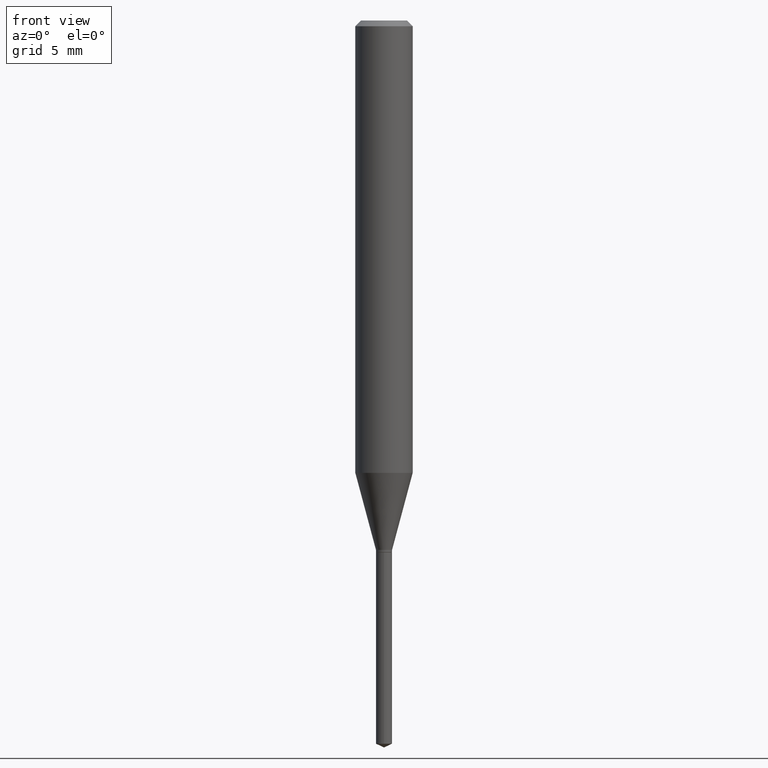
[diagram: clean part render]
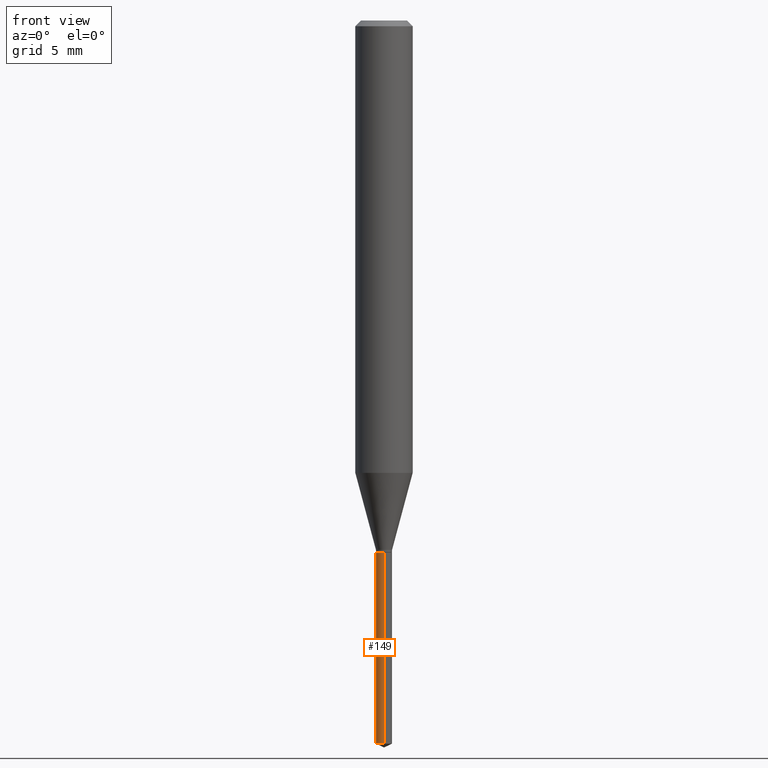
[diagram: same view with one face highlighted and labeled with its STEP entity id]
A machine part, front view. The second image highlights one B-rep face of the part: STEP entity #149.
In plain terms, the highlighted cylindrical surface (edge-blend (fillet) strip) has radius 0.4204 mm, axis along (-0, 0, 1).
Its self-contained STEP definition (entity closure, byte-faithful):
#7 = FACE_OUTER_BOUND ( 'NONE', #132, .T. ) ;
#8 = ORIENTED_EDGE ( 'NONE', *, *, #353, .F. ) ;
#10 = VERTEX_POINT ( 'NONE', #218 ) ;
#42 = CIRCLE ( 'NONE', #114, 0.01654999999999999874 ) ;
#57 = VERTEX_POINT ( 'NONE', #262 ) ;
#67 = CARTESIAN_POINT ( 'NONE',  ( 2.676565608369631794E-29, -3.821426325363822773E-15, -1.094499999999999806 ) ) ;
#101 = DIRECTION ( 'NONE',  ( -2.445460715294871217E-29, 3.491492925458510144E-15, 1.000000000000000000 ) ) ;
#108 = CARTESIAN_POINT ( 'NONE',  ( 1.175948227683330073E-16, 0.01654999999999617541, -1.094499999999999806 ) ) ;
#114 = AXIS2_PLACEMENT_3D ( 'NONE', #241, #345, #397 ) ;
#129 = VERTEX_POINT ( 'NONE', #108 ) ;
#132 = EDGE_LOOP ( 'NONE', ( #8, #263, #303, #379 ) ) ;
#143 = VECTOR ( 'NONE', #234, 39.37007874015748143 ) ;
#149 = ADVANCED_FACE ( 'NONE', ( #7 ), #155, .T. ) ;
#155 = CYLINDRICAL_SURFACE ( 'NONE', #285, 0.01654999999999999874 ) ;
#170 = CARTESIAN_POINT ( 'NONE',  ( 3.639790053301312360E-29, -5.196664665556151935E-15, -1.488382608257534656 ) ) ;
#206 = AXIS2_PLACEMENT_3D ( 'NONE', #170, #101, #314 ) ;
#218 = CARTESIAN_POINT ( 'NONE',  ( -1.155680323156712916E-16, -0.01655000000000519597, -1.488382608257534656 ) ) ;
#234 = DIRECTION ( 'NONE',  ( -2.445460715294871217E-29, 3.491492925458510144E-15, 1.000000000000000000 ) ) ;
#241 = CARTESIAN_POINT ( 'NONE',  ( 2.676565608369631794E-29, -3.821426325363822773E-15, -1.094499999999999806 ) ) ;
#245 = DIRECTION ( 'NONE',  ( -6.982962677686266711E-15, -1.000000000000000000, 0.000000000000000000 ) ) ;
#251 = DIRECTION ( 'NONE',  ( -2.445460715294871217E-29, 3.491492925458510144E-15, 1.000000000000000000 ) ) ;
#262 = CARTESIAN_POINT ( 'NONE',  ( -1.155680323156809305E-16, -0.01655000000000381860, -1.094499999999999806 ) ) ;
#263 = ORIENTED_EDGE ( 'NONE', *, *, #410, .T. ) ;
#285 = AXIS2_PLACEMENT_3D ( 'NONE', #67, #394, #245 ) ;
#303 = ORIENTED_EDGE ( 'NONE', *, *, #458, .T. ) ;
#314 = DIRECTION ( 'NONE',  ( -6.982962677686266711E-15, -1.000000000000000000, 0.000000000000000000 ) ) ;
#345 = DIRECTION ( 'NONE',  ( -2.445460715294871217E-29, 3.491492925458510144E-15, 1.000000000000000000 ) ) ;
#352 = LINE ( 'NONE', #439, #143 ) ;
#353 = EDGE_CURVE ( 'NONE', #421, #129, #352, .T. ) ;
#364 = CARTESIAN_POINT ( 'NONE',  ( -1.155680323156809305E-16, -0.01655000000000381860, -1.094499999999999806 ) ) ;
#379 = ORIENTED_EDGE ( 'NONE', *, *, #424, .F. ) ;
#394 = DIRECTION ( 'NONE',  ( -2.445460715294871217E-29, 3.491492925458510144E-15, 1.000000000000000000 ) ) ;
#397 = DIRECTION ( 'NONE',  ( -6.982962677686266711E-15, -1.000000000000000000, 0.000000000000000000 ) ) ;
#410 = EDGE_CURVE ( 'NONE', #421, #10, #422, .T. ) ;
#415 = VECTOR ( 'NONE', #251, 39.37007874015748143 ) ;
#421 = VERTEX_POINT ( 'NONE', #485 ) ;
#422 = CIRCLE ( 'NONE', #206, 0.01654999999999999874 ) ;
#424 = EDGE_CURVE ( 'NONE', #129, #57, #42, .T. ) ;
#427 = LINE ( 'NONE', #364, #415 ) ;
#439 = CARTESIAN_POINT ( 'NONE',  ( 1.175948227683233191E-16, 0.01654999999999617541, -1.094499999999999806 ) ) ;
#458 = EDGE_CURVE ( 'NONE', #10, #57, #427, .T. ) ;
#485 = CARTESIAN_POINT ( 'NONE',  ( 1.175948227683329334E-16, 0.01654999999999479804, -1.488382608257534656 ) ) ;